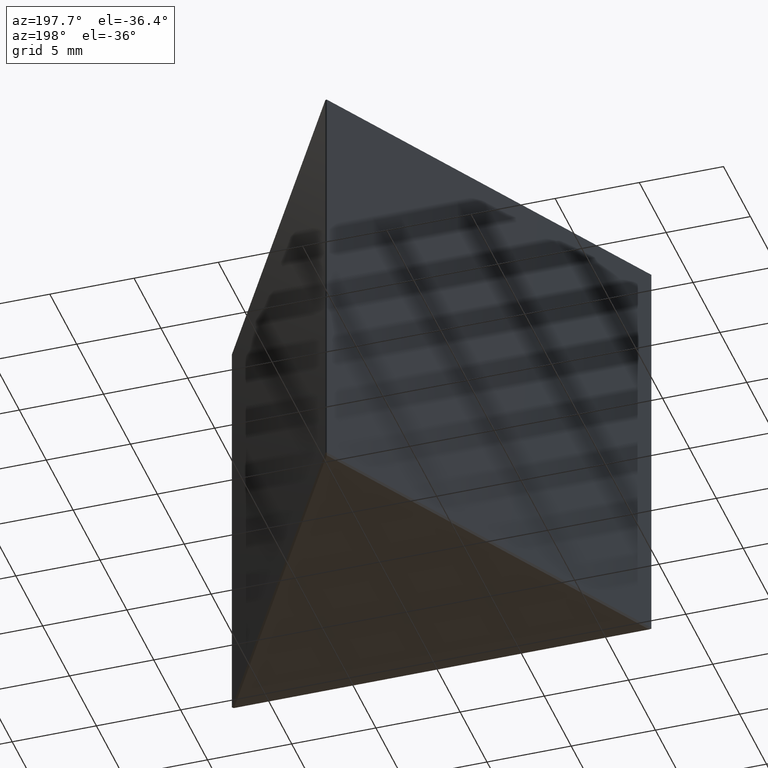
[diagram: clean part render]
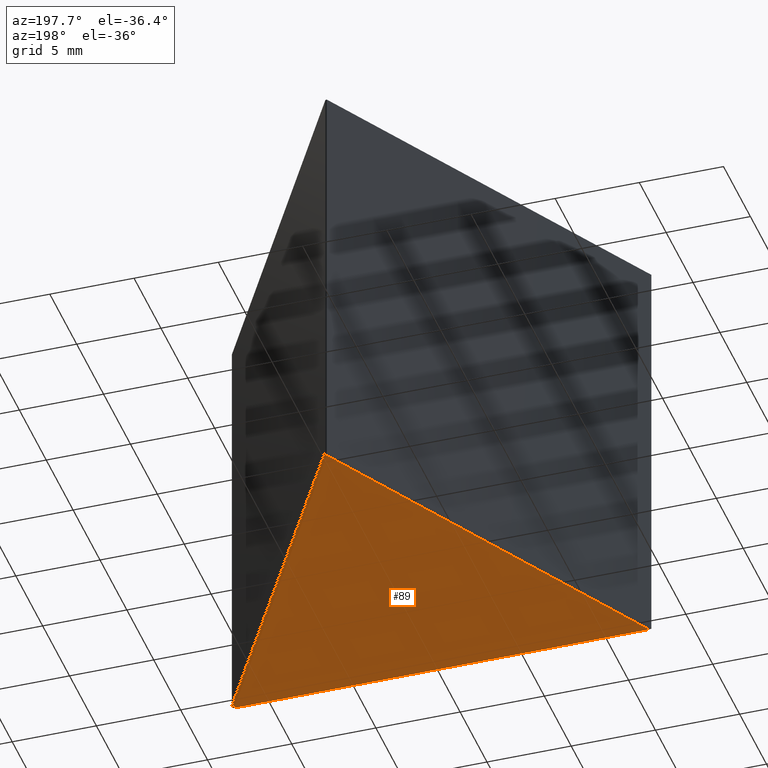
[diagram: same view with one face highlighted and labeled with its STEP entity id]
A machine part, auxiliary view. The second image highlights one B-rep face of the part: STEP entity #89.
In plain terms, the highlighted planar face has unit normal (0, 0, 1).
Its self-contained STEP definition (entity closure, byte-faithful):
#31 = CARTESIAN_POINT ( 'NONE',  ( -12.32679491924311321, -21.55063509461096771, 0.000000000000000000 ) ) ;
#39 = VERTEX_POINT ( 'NONE', #118 ) ;
#72 = EDGE_LOOP ( 'NONE', ( #140, #369, #388 ) ) ;
#77 = VERTEX_POINT ( 'NONE', #399 ) ;
#80 = DIRECTION ( 'NONE',  ( -1.000000000000000000, 0.000000000000000000, 0.000000000000000000 ) ) ;
#89 = ADVANCED_FACE ( 'NONE', ( #240 ), #433, .F. ) ;
#91 = CARTESIAN_POINT ( 'NONE',  ( 0.000000000000000000, 0.000000000000000000, 0.000000000000000000 ) ) ;
#118 = CARTESIAN_POINT ( 'NONE',  ( -1.811384529206523306E-15, -0.2000000000000053402, 0.000000000000000000 ) ) ;
#131 = CARTESIAN_POINT ( 'NONE',  ( -0.08660254037844784814, -0.05000000000000231343, 0.000000000000000000 ) ) ;
#133 = DIRECTION ( 'NONE',  ( 1.000000000000000000, 0.000000000000000000, -0.000000000000000000 ) ) ;
#137 = LINE ( 'NONE', #167, #212 ) ;
#139 = LINE ( 'NONE', #217, #320 ) ;
#140 = ORIENTED_EDGE ( 'NONE', *, *, #461, .T. ) ;
#149 = EDGE_CURVE ( 'NONE', #352, #39, #139, .T. ) ;
#167 = CARTESIAN_POINT ( 'NONE',  ( 0.000000000000000000, -21.55063509461096771, 0.000000000000000000 ) ) ;
#178 = DIRECTION ( 'NONE',  ( 0.000000000000000000, 0.000000000000000000, 1.000000000000000000 ) ) ;
#212 = VECTOR ( 'NONE', #80, 1000.000000000000000 ) ;
#217 = CARTESIAN_POINT ( 'NONE',  ( 0.08660254037844482278, -0.05000000000000056483, 0.000000000000000000 ) ) ;
#236 = LINE ( 'NONE', #131, #401 ) ;
#240 = FACE_OUTER_BOUND ( 'NONE', #72, .T. ) ;
#242 = DIRECTION ( 'NONE',  ( 0.5000000000000001110, -0.8660254037844385966, 0.000000000000000000 ) ) ;
#320 = VECTOR ( 'NONE', #370, 1000.000000000000114 ) ;
#352 = VERTEX_POINT ( 'NONE', #31 ) ;
#369 = ORIENTED_EDGE ( 'NONE', *, *, #409, .T. ) ;
#370 = DIRECTION ( 'NONE',  ( 0.5000000000000001110, 0.8660254037844385966, 0.000000000000000000 ) ) ;
#384 = AXIS2_PLACEMENT_3D ( 'NONE', #91, #178, #133 ) ;
#388 = ORIENTED_EDGE ( 'NONE', *, *, #149, .T. ) ;
#399 = CARTESIAN_POINT ( 'NONE',  ( 12.32679491924311144, -21.55063509461096771, 0.000000000000000000 ) ) ;
#401 = VECTOR ( 'NONE', #242, 1000.000000000000114 ) ;
#409 = EDGE_CURVE ( 'NONE', #77, #352, #137, .T. ) ;
#433 = PLANE ( 'NONE',  #384 ) ;
#461 = EDGE_CURVE ( 'NONE', #39, #77, #236, .T. ) ;